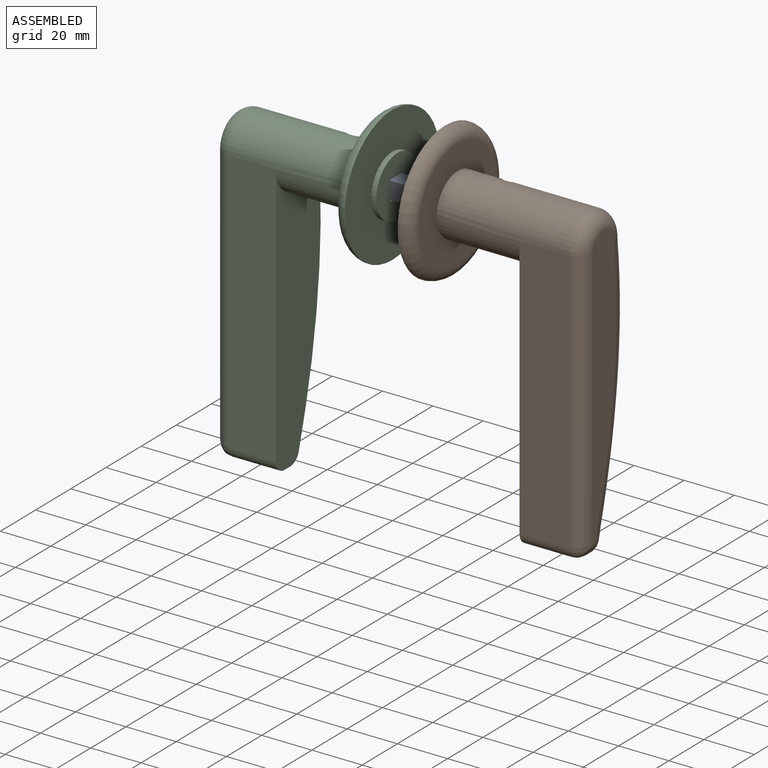
[diagram: assembled view]
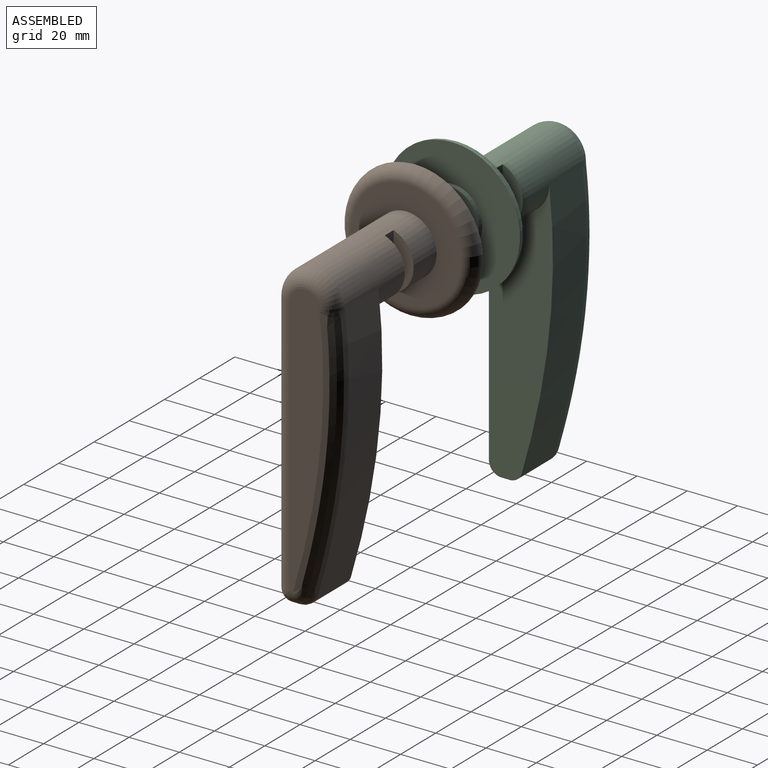
[diagram: assembled view, second angle]
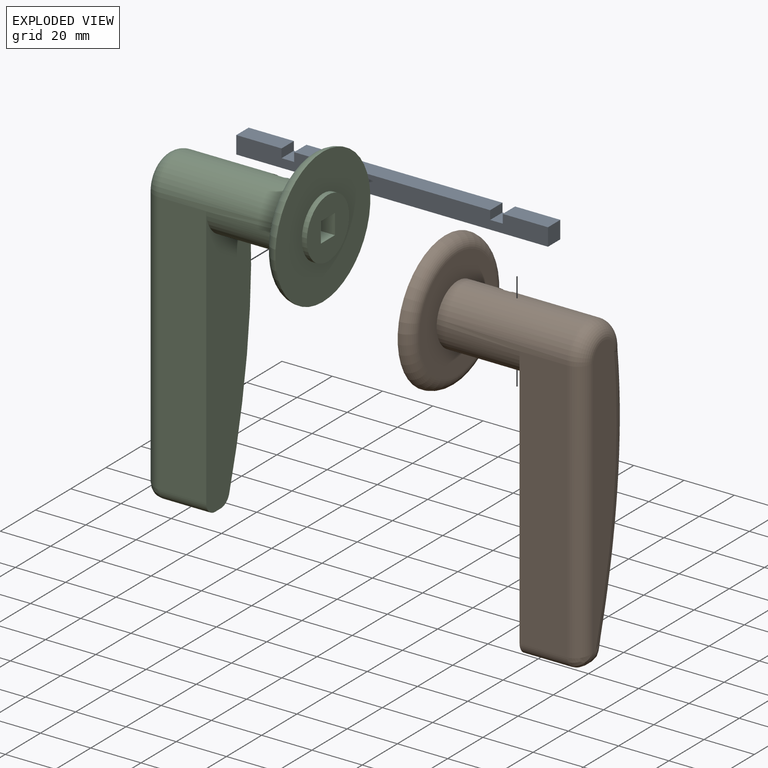
[diagram: exploded view]
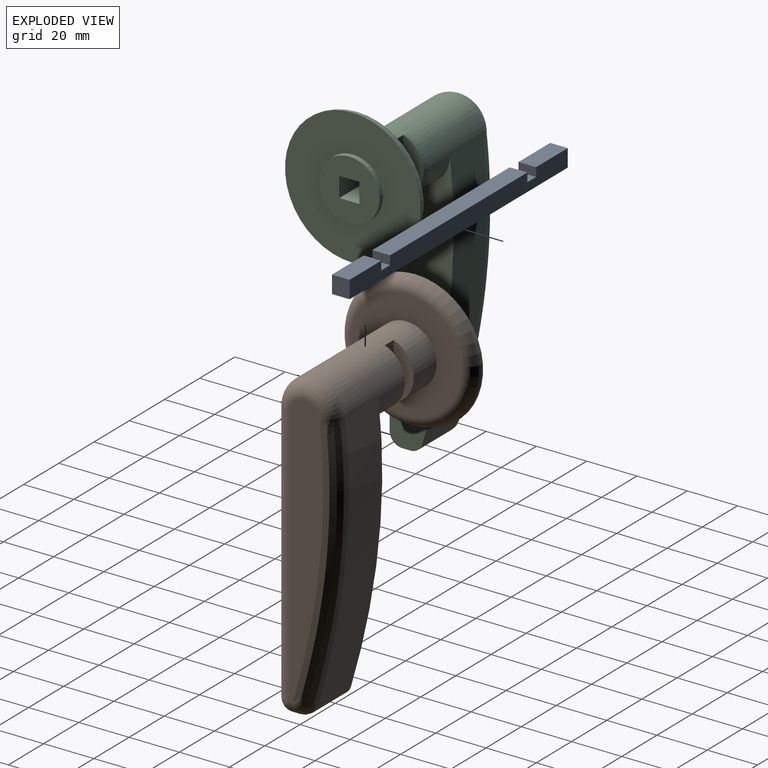
[diagram: exploded view, second angle]
ASSEMBLY  parts=3 mates=4
PART A: 14 faces, bbox 124x7x7 mm
  f0: plane 7x3.5mm, normal (1,0,0), area 24.5mm2, adj f1,f11,f12,f13
  f1: plane 78x7mm, normal (0,0,1), area 546mm2, adj f0,f2,f12,f13
  f2: plane 7x3.5mm, normal (-1,0,0), area 24.5mm2, adj f1,f3,f12,f13
  f3: plane 7x5mm, normal (0,0,1), area 35mm2, adj f2,f4,f12,f13
  f4: plane 7x3.5mm, normal (1,0,0), area 24.5mm2, adj f3,f5,f12,f13
  f5: plane 18x7mm, normal (0,0,1), area 126mm2, adj f4,f6,f12,f13
  f6: plane 7x7mm, normal (-1,0,0), area 49mm2, adj f5,f7,f12,f13
  f7: plane 124x7mm, normal (0,0,-1), area 868mm2, adj f6,f8,f12,f13
  f8: plane 7x7mm, normal (1,0,0), area 49mm2, adj f7,f9,f12,f13
  f9: plane 18x7mm, normal (0,0,1), area 126mm2, adj f8,f10,f12,f13
  f10: plane 7x3.5mm, normal (-1,0,0), area 24.5mm2, adj f9,f11,f12,f13
  f11: plane 7x5mm, normal (0,0,1), area 35mm2, adj f0,f10,f12,f13
  f12: plane 124x7mm, normal (0,-1,0), area 833mm2, adj f0,f1,f2,f3,f4,f5,f6,f7
  f13: plane 124x7mm, normal (0,1,0), area 833mm2, adj f0,f1,f2,f3,f4,f5,f6,f7
PART B: 29 faces, bbox 139.2x58.4x66.6 mm
  f0: plane 20x8mm, normal (0,-1,0), area 160mm2, adj f17,f19,f21,f27
  f1: cylinder r=12mm len=52mm, axis (0,0,-1), area 3056.7mm2, adj f2,f3,f4,f14,f15,f25,f26,f27
  f2: plane 110x27.72mm, normal (0,0,-1), area 2170.9mm2, adj f1,f3,f4,f5,f6,f7
  f3: extruded ~106.41x19mm, area 2046.4mm2, adj f1,f2,f7,f12
  f4: plane 105x19mm, normal (0,-1,0), area 1995mm2, adj f1,f2,f5,f13
  f5: cylinder r=5mm len=19mm, axis (0,0,-1), area 149.2mm2, adj f2,f4,f6,f11
  f6: plane 19x3.28mm, normal (1,0,0), area 62.4mm2, adj f2,f5,f7,f9
  f7: cylinder r=5mm len=19mm, axis (0,0,-1), area 122mm2, adj f2,f3,f6,f10
  f8: plane 110.02x13.52mm, normal (0,0,1), area 1128.9mm2, adj f9,f12,f13,f14
  f9: cylinder r=6mm len=6mm, axis (0,-1,0), area 22.7mm2, adj f6,f8,f10,f11
  f10: bspline ~6.43x6mm, area 26.9mm2, adj f7,f9,f12
  f11: bspline ~6.36x6mm, area 32.8mm2, adj f5,f9,f13
  f12: bspline ~110.93x18.89mm, area 1005.2mm2, adj f3,f8,f10,f14
  f13: cylinder r=6mm len=105mm, axis (-1,0,0), area 984.9mm2, adj f4,f8,f11,f14
  f14: torus R=6mm, axis (0,0,1), area 292.8mm2, adj f1,f8,f12,f13
  f15: plane 44x44mm, normal (0,0,1), area 1068.1mm2, adj f1,f24
  f16: plane 54x54mm, normal (0,0,-1), area 1837.8mm2, adj f23,f24
  f17: plane 8x8mm, normal (0,0,-1), area 64mm2, adj f0,f18,f19,f21
  f18: plane 45x8mm, normal (0,1,0), area 360mm2, adj f17,f19,f21,f22
  f19: plane 45x8mm, normal (1,0,0), area 360mm2, adj f0,f17,f18,f20,f22,f26
  f20: plane 20x8mm, normal (0,-1,0), area 160mm2, adj f19,f21,f22,f28
  f21: plane 45x8mm, normal (-1,0,0), area 360mm2, adj f0,f17,f18,f20,f22,f25
  f22: plane 24x24mm, normal (0,0,-1), area 388.4mm2, adj f18,f19,f20,f21,f23
  f23: cylinder r=12mm len=24mm, axis (0,0,-1), area 150.8mm2, adj f16,f22
  f24: torus R=22mm, axis (0,0,-1), area 1242.7mm2, adj f15,f16
  f25: plane 7.31x5mm, normal (0,1,0), area 36.6mm2, adj f1,f21,f27,f28
  f26: plane 7.31x5mm, normal (0,1,0), area 36.6mm2, adj f1,f19,f27,f28
  f27: plane 22.63x8mm, normal (0,0,-1), area 132mm2, adj f0,f1,f25,f26
  f28: plane 22.63x8mm, normal (0,0,1), area 132mm2, adj f1,f20,f25,f26
PART C: 29 faces, bbox 139.2x58.4x66.6 mm
  f0: plane 20x8mm, normal (0,-1,0), area 160mm2, adj f17,f19,f21,f27
  f1: cylinder r=12mm len=52mm, axis (0,0,1), area 3056.7mm2, adj f2,f3,f4,f14,f15,f25,f26,f27
  f2: plane 110x27.72mm, normal (0,0,1), area 2170.9mm2, adj f1,f3,f4,f5,f6,f7
  f3: extruded ~106.41x19mm, area 2046.4mm2, adj f1,f2,f7,f12
  f4: plane 105x19mm, normal (0,-1,0), area 1995mm2, adj f1,f2,f5,f13
  f5: cylinder r=5mm len=19mm, axis (0,0,1), area 149.2mm2, adj f2,f4,f6,f11
  f6: plane 19x3.28mm, normal (1,0,0), area 62.4mm2, adj f2,f5,f7,f9
  f7: cylinder r=5mm len=19mm, axis (0,0,1), area 122mm2, adj f2,f3,f6,f10
  f8: plane 110.02x13.52mm, normal (0,0,-1), area 1128.9mm2, adj f9,f12,f13,f14
  f9: cylinder r=6mm len=6mm, axis (0,-1,0), area 22.7mm2, adj f6,f8,f10,f11
  f10: bspline ~6.43x6mm, area 26.9mm2, adj f7,f9,f12
  f11: bspline ~6.36x6mm, area 32.8mm2, adj f5,f9,f13
  f12: bspline ~110.93x18.89mm, area 1005.2mm2, adj f3,f8,f10,f14
  f13: cylinder r=6mm len=105mm, axis (-1,0,0), area 984.9mm2, adj f4,f8,f11,f14
  f14: torus R=6mm, axis (0,0,-1), area 292.8mm2, adj f1,f8,f12,f13
  f15: plane 44x44mm, normal (0,0,-1), area 1068.1mm2, adj f1,f24
  f16: plane 54x54mm, normal (0,0,1), area 1837.8mm2, adj f23,f24
  f17: plane 8x8mm, normal (0,0,1), area 64mm2, adj f0,f18,f19,f21
  f18: plane 45x8mm, normal (0,1,0), area 360mm2, adj f17,f19,f21,f22
  f19: plane 45x8mm, normal (1,0,0), area 360mm2, adj f0,f17,f18,f20,f22,f26
  f20: plane 20x8mm, normal (0,-1,0), area 160mm2, adj f19,f21,f22,f28
  f21: plane 45x8mm, normal (-1,0,0), area 360mm2, adj f0,f17,f18,f20,f22,f25
  f22: plane 24x24mm, normal (0,0,1), area 388.4mm2, adj f18,f19,f20,f21,f23
  f23: cylinder r=12mm len=24mm, axis (0,0,1), area 150.8mm2, adj f16,f22
  f24: torus R=22mm, axis (0,0,1), area 1242.7mm2, adj f15,f16
  f25: plane 7.31x5mm, normal (0,1,0), area 36.6mm2, adj f1,f21,f27,f28
  f26: plane 7.31x5mm, normal (0,1,0), area 36.6mm2, adj f1,f19,f27,f28
  f27: plane 22.63x8mm, normal (0,0,1), area 132mm2, adj f0,f1,f25,f26
  f28: plane 22.63x8mm, normal (0,0,-1), area 132mm2, adj f1,f20,f25,f26
PLACE A rot(axis=(-0.97,-0.22,-0.06),0deg) t=(1.21,47.97,3)mm
PLACE B rot(axis=(0,1,0),90deg) t=(18.21,43.97,7)mm
PLACE C rot(axis=(0,1,0),90deg) t=(1.21,43.97,7)mm
MATE planar B.f21 <-> A.f7  axis (0,0,1) through (40.71,43.97,3)mm
MATE planar B.f24 <-> A.f8  axis (-1,0,0) through (63.21,43.97,7)mm
MATE planar B.f25 <-> A.f13  axis (0,1,0) through (40.71,47.97,-0.66)mm
MATE planar C.f25 <-> A.f13  axis (0,1,0) through (-21.29,47.97,-0.66)mm
